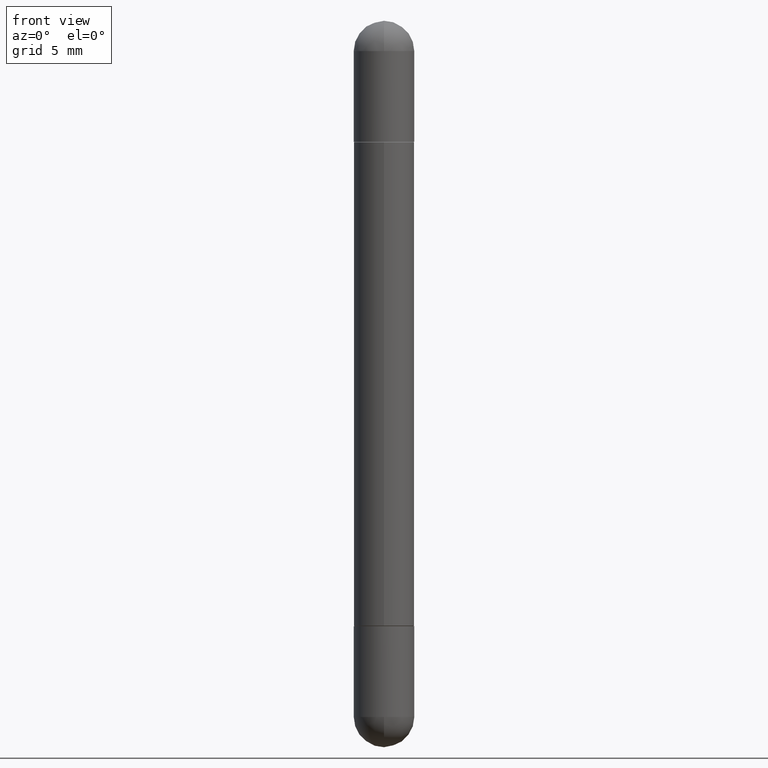
[diagram: clean part render]
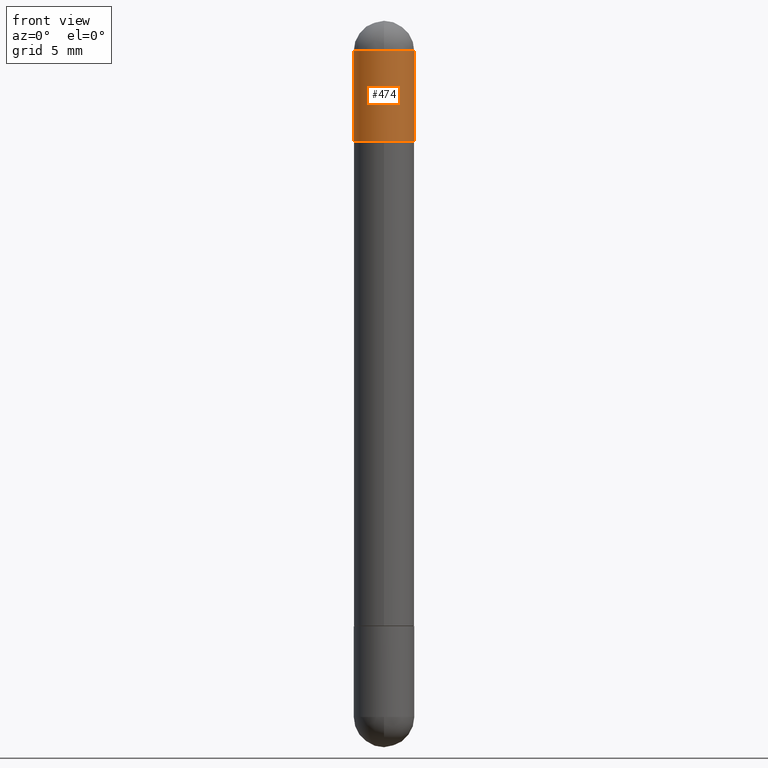
[diagram: same view with one face highlighted and labeled with its STEP entity id]
A machine part, front view. The second image highlights one B-rep face of the part: STEP entity #474.
In plain terms, the highlighted cylindrical surface (edge-blend (fillet) strip) has radius 1.5875 mm, axis along (-0, 0, -1).
Its self-contained STEP definition (entity closure, byte-faithful):
#1 = DIRECTION ( 'NONE',  ( 1.000000000000000000, -6.982962677686261189E-15, 0.000000000000000000 ) ) ;
#32 = DIRECTION ( 'NONE',  ( -2.445468806185136597E-29, 3.491481338843145583E-15, -1.000000000000000000 ) ) ;
#90 = ORIENTED_EDGE ( 'NONE', *, *, #653, .T. ) ;
#92 = CARTESIAN_POINT ( 'NONE',  ( 0.000000000000000000, 0.000000000000000000, -1.500000000000000444 ) ) ;
#109 = DIRECTION ( 'NONE',  ( 2.445468806185136597E-29, -3.491481338843145583E-15, 1.000000000000000000 ) ) ;
#113 = VECTOR ( 'NONE', #743, 39.37007874015748143 ) ;
#121 = CARTESIAN_POINT ( 'NONE',  ( 0.06250000000000001388, -4.800786840909324141E-15, -0.2500000000000003331 ) ) ;
#124 = CIRCLE ( 'NONE', #263, 0.06250000000000001388 ) ;
#127 = CARTESIAN_POINT ( 'NONE',  ( 3.056836007731421306E-29, -4.364351673553932471E-15, -0.2500000000000003331 ) ) ;
#147 = FACE_OUTER_BOUND ( 'NONE', #229, .T. ) ;
#170 = CARTESIAN_POINT ( 'NONE',  ( 3.515361408891134418E-29, -5.019004424587023131E-15, -0.06250000000000022204 ) ) ;
#172 = DIRECTION ( 'NONE',  ( 2.445468806185136597E-29, -3.491481338843145583E-15, 1.000000000000000000 ) ) ;
#186 = EDGE_CURVE ( 'NONE', #520, #770, #795, .T. ) ;
#197 = EDGE_CURVE ( 'NONE', #443, #198, #124, .T. ) ;
#198 = VERTEX_POINT ( 'NONE', #612 ) ;
#220 = EDGE_CURVE ( 'NONE', #198, #770, #494, .T. ) ;
#229 = EDGE_LOOP ( 'NONE', ( #704, #90, #367, #509, #638 ) ) ;
#247 = CARTESIAN_POINT ( 'NONE',  ( 0.06250000000000001388, -4.364351673553918173E-16, -1.500000000000000444 ) ) ;
#253 = DIRECTION ( 'NONE',  ( -2.445468806185136877E-29, 3.491481338843145188E-15, -1.000000000000000000 ) ) ;
#263 = AXIS2_PLACEMENT_3D ( 'NONE', #738, #620, #687 ) ;
#276 = DIRECTION ( 'NONE',  ( 1.000000000000000000, -6.982962677686267499E-15, 0.000000000000000000 ) ) ;
#310 = LINE ( 'NONE', #667, #385 ) ;
#367 = ORIENTED_EDGE ( 'NONE', *, *, #186, .T. ) ;
#385 = VECTOR ( 'NONE', #253, 39.37007874015748143 ) ;
#394 = AXIS2_PLACEMENT_3D ( 'NONE', #92, #32, #276 ) ;
#443 = VERTEX_POINT ( 'NONE', #702 ) ;
#474 = ADVANCED_FACE ( 'NONE', ( #147 ), #605, .T. ) ;
#494 = LINE ( 'NONE', #247, #113 ) ;
#509 = ORIENTED_EDGE ( 'NONE', *, *, #220, .F. ) ;
#520 = VERTEX_POINT ( 'NONE', #522 ) ;
#522 = CARTESIAN_POINT ( 'NONE',  ( -0.06250000000000001388, -4.262896924209756684E-15, -0.2500000000000003331 ) ) ;
#542 = AXIS2_PLACEMENT_3D ( 'NONE', #170, #109, #1 ) ;
#578 = CIRCLE ( 'NONE', #542, 0.06250000000000001388 ) ;
#605 = CYLINDRICAL_SURFACE ( 'NONE', #394, 0.06250000000000001388 ) ;
#612 = CARTESIAN_POINT ( 'NONE',  ( 0.06250000000000001388, -5.128113216425869076E-15, -0.06250000000000022204 ) ) ;
#620 = DIRECTION ( 'NONE',  ( 2.445468806185136597E-29, -3.491481338843145583E-15, 1.000000000000000000 ) ) ;
#638 = ORIENTED_EDGE ( 'NONE', *, *, #197, .F. ) ;
#653 = EDGE_CURVE ( 'NONE', #712, #520, #310, .T. ) ;
#667 = CARTESIAN_POINT ( 'NONE',  ( -0.06250000000000001388, 4.287811248607208706E-16, -1.500000000000000444 ) ) ;
#687 = DIRECTION ( 'NONE',  ( 1.000000000000000000, -6.982962677686261189E-15, 0.000000000000000000 ) ) ;
#702 = CARTESIAN_POINT ( 'NONE',  ( -4.287811248606879849E-16, -0.06250000000000537070, -0.06250000000000044409 ) ) ;
#704 = ORIENTED_EDGE ( 'NONE', *, *, #719, .F. ) ;
#712 = VERTEX_POINT ( 'NONE', #747 ) ;
#719 = EDGE_CURVE ( 'NONE', #712, #443, #578, .T. ) ;
#738 = CARTESIAN_POINT ( 'NONE',  ( 3.515361408891134418E-29, -5.019004424587023131E-15, -0.06250000000000022204 ) ) ;
#743 = DIRECTION ( 'NONE',  ( -2.445468806185136877E-29, 3.491481338843145188E-15, -1.000000000000000000 ) ) ;
#747 = CARTESIAN_POINT ( 'NONE',  ( -0.06250000000000001388, -4.262896924209757473E-15, -0.06250000000000022204 ) ) ;
#770 = VERTEX_POINT ( 'NONE', #121 ) ;
#774 = AXIS2_PLACEMENT_3D ( 'NONE', #127, #172, #806 ) ;
#795 = CIRCLE ( 'NONE', #774, 0.06250000000000001388 ) ;
#806 = DIRECTION ( 'NONE',  ( 1.000000000000000000, -6.982962677686269077E-15, 0.000000000000000000 ) ) ;